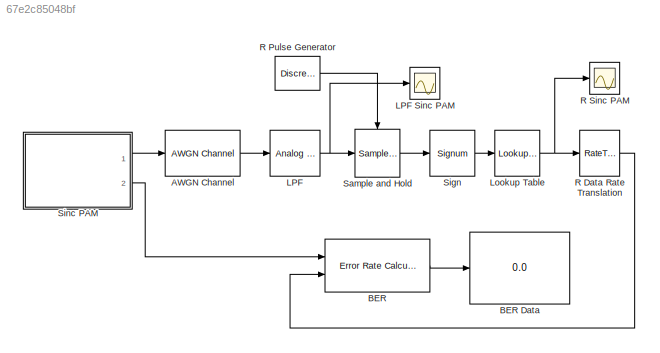
MODEL slx_67e2c85048bf
KIND model
BLOCK [Reference] AWGN Channel  REF=commchan3/AWGN
Channel
  EbNodB = 10
  EsNodB = 10
  InputProcessing = Inherited (this choice will be removed - see release notes)
  Ports = [1, 1]
  Ps = 1
  SNRdB = 10
  SourceBlock = commchan3/AWGN\nChannel
  SourceType = AWGN Channel
  Tsym = 1
  UserDataPersistent = on
  bitsPerSym = 1
  noiseMode = Variance from mask
  seed = randseed
  variance = 0
BLOCK [Reference] BER  REF=commsink2/Error Rate
Calculation
  N = 8
  PMode = Port
  Ports = [2, 1]
  RsMode2 = off
  SourceBlock = commsink2/Error Rate\nCalculation
  SourceType = Error Rate Calculation
  WsName = ErrorVec
  cp_mode = Entire frame
  maxBits = 1e6
  numErr = 100
  st_delay = 0
  stop = off
  subframe = []
BLOCK [Display] BER Data
  Decimation = 1
  Format = long
  Ports = [1]
BLOCK [Reference] LPF  REF=dsparch4/Analog
Filter Design
  N = 9
  Ports = [1, 1]
  Rp = 0.1
  Rs = 40
  SourceBlock = dsparch4/Analog\nFilter Design
  SourceType = Analog Filter Design
  Whi = 80
  Wlo = 2*pi*600
  filttype = Lowpass
  method = Chebyshev I
BLOCK [Scope] LPF Sinc PAM
  DataFormat = StructureWithTime
  Floating = off
  LimitDataPoints = off
  NumInputPorts = 1
  Ports = [1]
  SampleTime = 0
  SaveName = ScopeData3
  ShowLegends = off
  TimeRange = 0.05
  YMax = 8
  YMin = -8
BLOCK [Lookup_n-D] Lookup Table
  BreakpointsForDimension1 = [-1,0,1]
  BreakpointsForDimension3 = [5, 7]
  InternalRulePriority = Speed
  NumberOfTableDimensions = 1
  Ports = [1, 1]
  RndMeth = Simplest
  Table = [-1,-1,1]
BLOCK [RateTransition] R Data Rate Translation
  OutPortSampleTime = 1e-3
BLOCK [DiscretePulseGenerator] R Pulse Generator
  Period = 1e-3
  Ports = [0, 1]
  PulseType = Time based
  PulseWidth = 10
BLOCK [Scope] R Sinc PAM
  DataFormat = StructureWithTime
  Floating = off
  LimitDataPoints = off
  NumInputPorts = 1
  Ports = [1]
  SampleTime = 0
  SaveName = ScopeData1
  ShowLegends = off
  TimeRange = 0.05
  YMax = 8
  YMin = -8
BLOCK [Reference] Sample and Hold  REF=dspsigops/Sample
and Hold
  Ports = [1, 1, 0, 1]
  SourceBlock = dspsigops/Sample\nand Hold
  SourceType = Sample and Hold
  initCond = 0
  latchinput = off
  trig = Rising edge
BLOCK [Signum] Sign
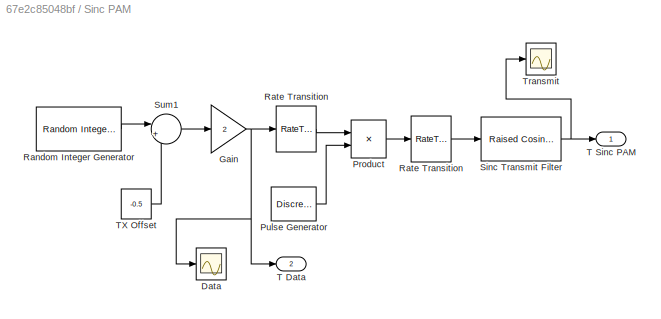
BLOCK [SubSystem] Sinc PAM
  Ports = [0, 2]
  RequestExecContextInheritance = off
BLOCK [RateTransition] Sinc PAM/ Rate Transition
  OutPortSampleTime = 1e-3
BLOCK [Scope] Sinc PAM/Data
  DataFormat = StructureWithTime
  Floating = off
  LimitDataPoints = off
  NumInputPorts = 1
  Ports = [1]
  SampleTime = 0
  SaveName = ScopeData2
  ShowLegends = off
  TimeRange = 0.05
  YMax = 8
  YMin = -8
BLOCK [Gain] Sinc PAM/Gain
  Gain = 2
  OutDataTypeStr = Inherit: Inherit via internal rule
  ParamDataTypeStr = Inherit: Inherit via internal rule
  SaturateOnIntegerOverflow = off
BLOCK [Product] Sinc PAM/Product
  InputSameDT = off
  OutDataTypeStr = Inherit: Inherit via internal rule
  Ports = [2, 1]
  SaturateOnIntegerOverflow = off
BLOCK [DiscretePulseGenerator] Sinc PAM/Pulse Generator
  Period = 1e-3
  Ports = [0, 1]
  PulseType = Time based
  PulseWidth = 2
BLOCK [Reference] Sinc PAM/Random Integer Generator  REF=commrandsrc2/Random Integer
Generator
  Ports = [0, 1]
  SourceBlock = commrandsrc2/Random Integer\nGenerator
  SourceType = Random Integer Generator
  Ts = 1e-3
  frameBased = off
  mul = 2
  orient = off
  outDataType = double
  sampPerFrame = 50
  seed = randseed
BLOCK [RateTransition] Sinc PAM/Rate Transition
  OutPortSampleTime = 2e-5
BLOCK [Reference] Sinc PAM/Sinc Transmit Filter  REF=commfilt2/Raised Cosine
Transmit Filter
  D = 4
  InputProcessing = Inherited (this choice will be removed - see release notes)
  LockScale = off
  N = 50
  Ports = [1, 1]
  R = 0
  SourceBlock = commfilt2/Raised Cosine\nTransmit Filter
  SourceType = Raised Cosine Transmit Filter
  UserDataPersistent = on
  accumFracLength = 30
  accumMode = Inherit via internal rule
  accumWordLength = 32
  checkCoeff = off
  checkGain = User-specified
  coeffFracLength = 15
  coeffMode = Same word length as input
  coeffWordLength = 16
  currentFiltSpan = 2*(4)
  filtSpan = 2*(4)
  filtType = Normal
  filterGain = (5)*rcfiltgaincompat(gcbh)
  framing = Maintain input frame size
  launchFVT = off
  outputFracLength = 15
  outputMode = Same as accumulator
  outputWordLength = 16
  overflowMode = off
  prodOutputFracLength = 30
  prodOutputMode = Inherit via internal rule
  prodOutputWordLength = 32
  roundingMode = Floor
  sampMode = Mute
  saveAsFlag = 0
  variableName = rcTxFilt
BLOCK [Sum] Sinc PAM/Sum1
  IconShape = round
  InputSameDT = off
  Inputs = |++
  OutDataTypeStr = Inherit: Inherit via internal rule
  Ports = [2, 1]
  SaturateOnIntegerOverflow = off
BLOCK [Outport] Sinc PAM/T Data
  IconDisplay = Port number
  Port = 2
BLOCK [Outport] Sinc PAM/T Sinc PAM 
  IconDisplay = Port number
BLOCK [Constant] Sinc PAM/TX Offset
  Value = -0.5
BLOCK [Scope] Sinc PAM/Transmit
  DataFormat = StructureWithTime
  Floating = off
  LimitDataPoints = off
  NumInputPorts = 1
  Ports = [1]
  SampleTime = 0
  ShowLegends = off
  TimeRange = 0.05
  YMax = 8
  YMin = -8
LINE AWGN Channel:1 -> LPF:1
LINE BER:1 -> BER Data:1
NET LPF:1 -> LPF Sinc PAM:1, Sample and Hold:1
NET Lookup Table:1 -> R Data Rate Translation:1, R Sinc PAM:1
LINE R Data Rate Translation:1 -> BER:2
LINE R Pulse Generator:1 -> Sample and Hold:trigger
LINE Sample and Hold:1 -> Sign:1
LINE Sign:1 -> Lookup Table:1
LINE Sinc PAM/ Rate Transition:1 -> Sinc PAM/Sinc Transmit Filter:1
NET Sinc PAM/Gain:1 -> Sinc PAM/Data:1, Sinc PAM/Rate Transition:1, Sinc PAM/T Data:1
LINE Sinc PAM/Product:1 -> Sinc PAM/ Rate Transition:1
LINE Sinc PAM/Pulse Generator:1 -> Sinc PAM/Product:2
LINE Sinc PAM/Random Integer Generator:1 -> Sinc PAM/Sum1:1
LINE Sinc PAM/Rate Transition:1 -> Sinc PAM/Product:1
NET Sinc PAM/Sinc Transmit Filter:1 -> Sinc PAM/T Sinc PAM :1, Sinc PAM/Transmit:1
LINE Sinc PAM/Sum1:1 -> Sinc PAM/Gain:1
LINE Sinc PAM/TX Offset:1 -> Sinc PAM/Sum1:2
LINE Sinc PAM:1 -> AWGN Channel:1
LINE Sinc PAM:2 -> BER:1
note: NET lines group one-source signal fan-out (src -> all destinations, sorted); 1:1 wires keep LINE
